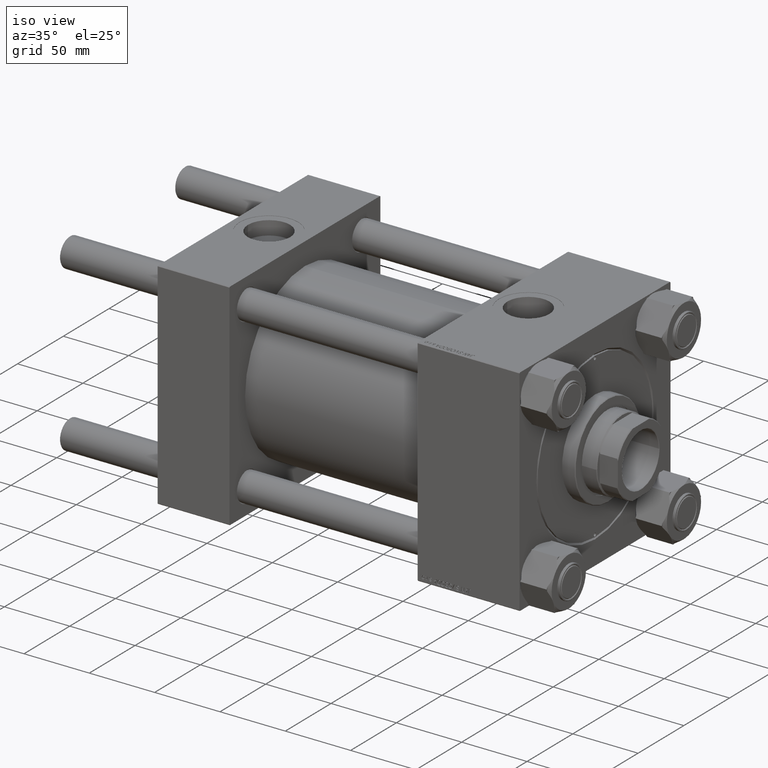
[diagram: clean part render]
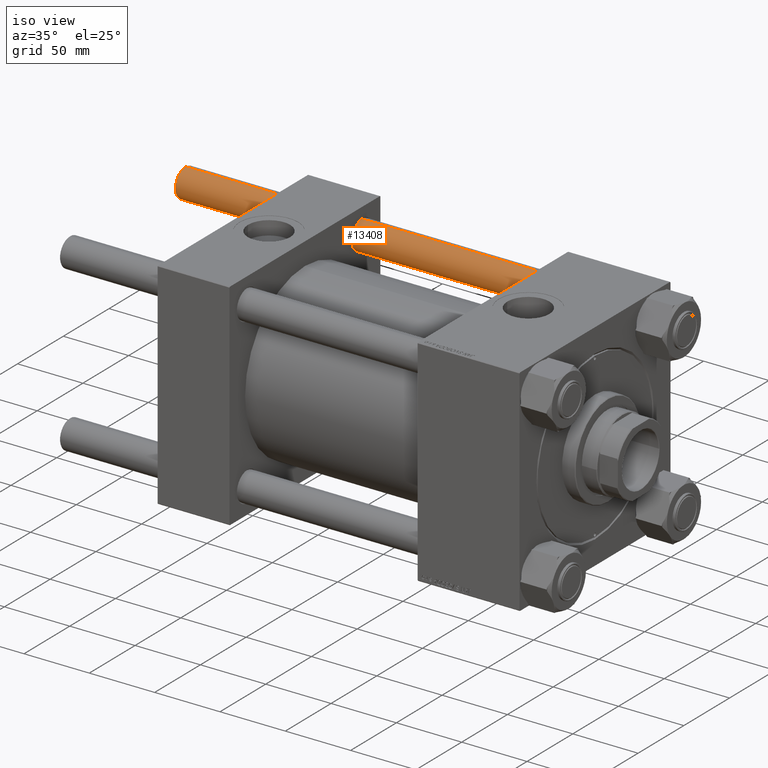
[diagram: same view with one face highlighted and labeled with its STEP entity id]
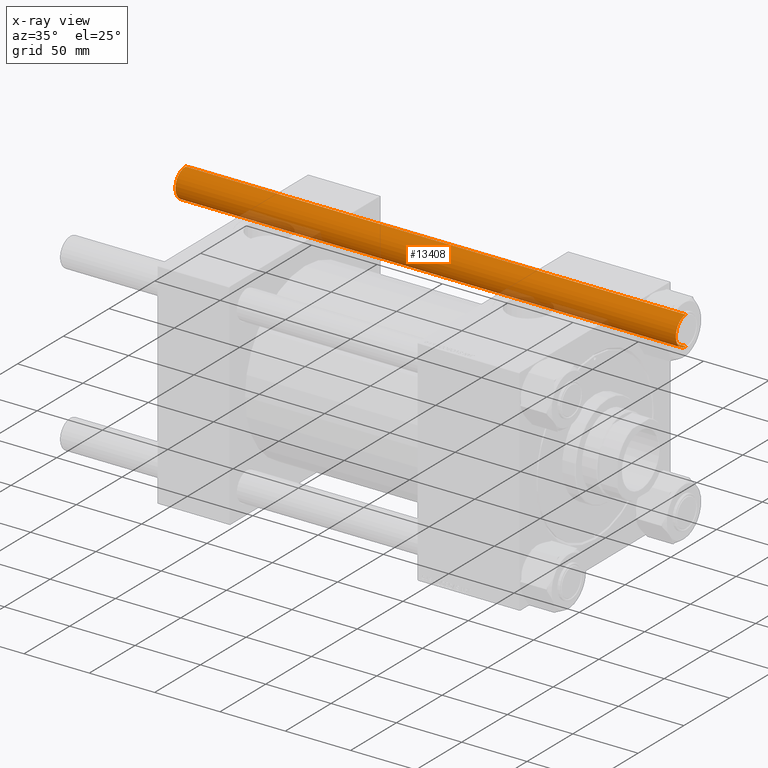
[diagram: x-ray of the same camera — body ghosted, the highlighted face saturated]
A machine part, iso view. The second image highlights one B-rep face of the part: STEP entity #13408.
The next image is the same camera in x-ray: the body ghosted, the highlighted face saturated — about 8% of this face is hidden behind the body in this view.
In plain terms, the highlighted cylindrical surface (edge-blend (fillet) strip) has radius 11 mm, axis along (-1, -0, -0).
Its self-contained STEP definition (entity closure, byte-faithful):
#1044 = DIRECTION ( 'NONE',  ( -0.000000000000000000, -0.000000000000000000, -1.000000000000000000 ) ) ;
#1135 = CARTESIAN_POINT ( 'NONE',  ( 0.000000000000000000, 0.000000000000000000, 383.5000000000000568 ) ) ;
#2799 = EDGE_CURVE ( 'NONE', #48516, #18837, #21067, .T. ) ;
#5152 = EDGE_CURVE ( 'NONE', #18837, #7452, #16349, .T. ) ;
#5451 = DIRECTION ( 'NONE',  ( 1.000000000000000000, 0.000000000000000000, 0.000000000000000000 ) ) ;
#5860 = ORIENTED_EDGE ( 'NONE', *, *, #31666, .T. ) ;
#6027 = CARTESIAN_POINT ( 'NONE',  ( -11.00000000000000000, 0.000000000000000000, 0.4999999999999449329 ) ) ;
#6068 = CIRCLE ( 'NONE', #34600, 11.00000000000000000 ) ;
#7301 = CARTESIAN_POINT ( 'NONE',  ( -11.00000000000000000, 0.000000000000000000, 383.5000000000000568 ) ) ;
#7452 = VERTEX_POINT ( 'NONE', #6027 ) ;
#12536 = CYLINDRICAL_SURFACE ( 'NONE', #46332, 11.00000000000000000 ) ;
#13408 = ADVANCED_FACE ( 'NONE', ( #39580 ), #12536, .T. ) ;
#16349 = LINE ( 'NONE', #28064, #41563 ) ;
#18837 = VERTEX_POINT ( 'NONE', #7301 ) ;
#21067 = CIRCLE ( 'NONE', #34131, 11.00000000000000000 ) ;
#25389 = CARTESIAN_POINT ( 'NONE',  ( 11.00000000000000000, 1.347111479062088405E-15, 383.5000000000000568 ) ) ;
#27335 = DIRECTION ( 'NONE',  ( -1.000000000000000000, 0.000000000000000000, 0.000000000000000000 ) ) ;
#28064 = CARTESIAN_POINT ( 'NONE',  ( -11.00000000000000000, 0.000000000000000000, 384.0000000000000000 ) ) ;
#28397 = DIRECTION ( 'NONE',  ( 0.000000000000000000, 0.000000000000000000, -1.000000000000000000 ) ) ;
#28610 = DIRECTION ( 'NONE',  ( 1.000000000000000000, 0.000000000000000000, 0.000000000000000000 ) ) ;
#29799 = VECTOR ( 'NONE', #44451, 1000.000000000000000 ) ;
#31419 = CARTESIAN_POINT ( 'NONE',  ( 0.000000000000000000, 0.000000000000000000, 384.0000000000000000 ) ) ;
#31666 = EDGE_CURVE ( 'NONE', #7452, #44017, #6068, .T. ) ;
#31913 = DIRECTION ( 'NONE',  ( -0.000000000000000000, -0.000000000000000000, -1.000000000000000000 ) ) ;
#34131 = AXIS2_PLACEMENT_3D ( 'NONE', #1135, #28397, #5451 ) ;
#34295 = ORIENTED_EDGE ( 'NONE', *, *, #5152, .T. ) ;
#34600 = AXIS2_PLACEMENT_3D ( 'NONE', #44192, #47771, #28610 ) ;
#35289 = LINE ( 'NONE', #37044, #29799 ) ;
#36885 = CARTESIAN_POINT ( 'NONE',  ( 11.00000000000000000, 1.347111479062088405E-15, 0.4999999999999449329 ) ) ;
#37044 = CARTESIAN_POINT ( 'NONE',  ( 11.00000000000000000, 1.347111479062088405E-15, 384.0000000000000000 ) ) ;
#38516 = EDGE_CURVE ( 'NONE', #48516, #44017, #35289, .T. ) ;
#38800 = EDGE_LOOP ( 'NONE', ( #46808, #42879, #34295, #5860 ) ) ;
#39580 = FACE_OUTER_BOUND ( 'NONE', #38800, .T. ) ;
#41563 = VECTOR ( 'NONE', #1044, 1000.000000000000000 ) ;
#42879 = ORIENTED_EDGE ( 'NONE', *, *, #2799, .T. ) ;
#44017 = VERTEX_POINT ( 'NONE', #36885 ) ;
#44192 = CARTESIAN_POINT ( 'NONE',  ( 0.000000000000000000, 0.000000000000000000, 0.4999999999999449329 ) ) ;
#44451 = DIRECTION ( 'NONE',  ( -0.000000000000000000, -0.000000000000000000, -1.000000000000000000 ) ) ;
#46332 = AXIS2_PLACEMENT_3D ( 'NONE', #31419, #31913, #27335 ) ;
#46808 = ORIENTED_EDGE ( 'NONE', *, *, #38516, .F. ) ;
#47771 = DIRECTION ( 'NONE',  ( -0.000000000000000000, -0.000000000000000000, 1.000000000000000000 ) ) ;
#48516 = VERTEX_POINT ( 'NONE', #25389 ) ;